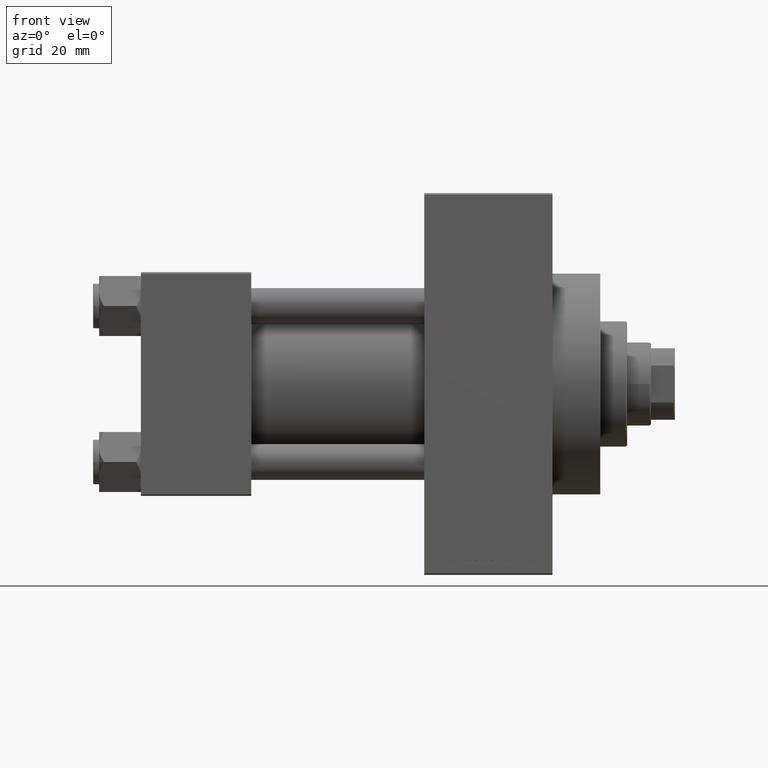
[diagram: clean part render]
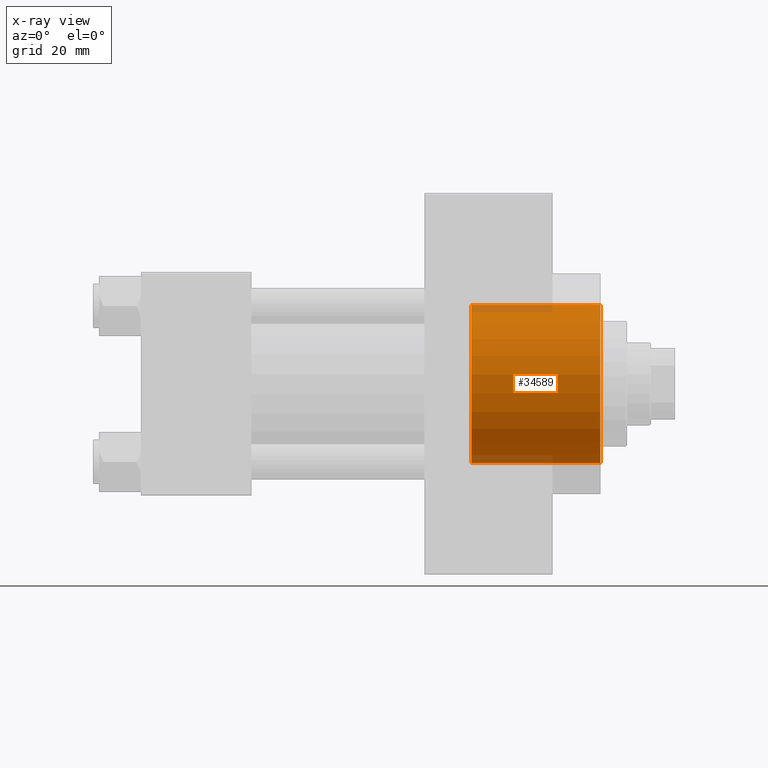
[diagram: x-ray — body ghosted, one internal face saturated and labeled with its STEP entity id]
A machine part, front view, then the same camera in x-ray: the body is ghosted and one INTERNAL B-rep face — a face not visible from any outside direction — is saturated and labeled: STEP entity #34589.
In plain terms, the highlighted cylindrical surface (partial cylindrical patch) has radius 26.5 mm, axis along (1, 0, 0).
Its self-contained STEP definition (entity closure, byte-faithful):
#594 = CYLINDRICAL_SURFACE ( 'NONE', #33798, 26.50000000000000355 ) ;
#2726 = CIRCLE ( 'NONE', #21805, 26.50000000000000355 ) ;
#5351 = ORIENTED_EDGE ( 'NONE', *, *, #31141, .F. ) ;
#6712 = CARTESIAN_POINT ( 'NONE',  ( 110.7400000000000375, 3.245314017740486554E-15, 26.50000000000000355 ) ) ;
#7849 = VECTOR ( 'NONE', #21296, 1000.000000000000000 ) ;
#10410 = VERTEX_POINT ( 'NONE', #12900 ) ;
#11343 = FACE_OUTER_BOUND ( 'NONE', #39605, .T. ) ;
#12900 = CARTESIAN_POINT ( 'NONE',  ( 110.7400000000000375, 3.245314017740486554E-15, 26.50000000000000355 ) ) ;
#13632 = VERTEX_POINT ( 'NONE', #41181 ) ;
#13757 = LINE ( 'NONE', #33550, #29881 ) ;
#14531 = VERTEX_POINT ( 'NONE', #18777 ) ;
#14822 = AXIS2_PLACEMENT_3D ( 'NONE', #26353, #40905, #15616 ) ;
#15616 = DIRECTION ( 'NONE',  ( 0.000000000000000000, 0.000000000000000000, -1.000000000000000000 ) ) ;
#18777 = CARTESIAN_POINT ( 'NONE',  ( 110.7400000000000375, 0.000000000000000000, -26.50000000000000355 ) ) ;
#19171 = VERTEX_POINT ( 'NONE', #26485 ) ;
#21296 = DIRECTION ( 'NONE',  ( 1.000000000000000000, -0.000000000000000000, -0.000000000000000000 ) ) ;
#21805 = AXIS2_PLACEMENT_3D ( 'NONE', #22831, #30228, #36911 ) ;
#22831 = CARTESIAN_POINT ( 'NONE',  ( 154.0000000000000284, 0.000000000000000000, 0.000000000000000000 ) ) ;
#25092 = LINE ( 'NONE', #6712, #7849 ) ;
#26353 = CARTESIAN_POINT ( 'NONE',  ( 110.7400000000000375, 0.000000000000000000, 0.000000000000000000 ) ) ;
#26485 = CARTESIAN_POINT ( 'NONE',  ( 154.0000000000000284, 3.245314017740486554E-15, 26.50000000000000355 ) ) ;
#28714 = ORIENTED_EDGE ( 'NONE', *, *, #35134, .T. ) ;
#29720 = CARTESIAN_POINT ( 'NONE',  ( 110.7400000000000375, 0.000000000000000000, 0.000000000000000000 ) ) ;
#29881 = VECTOR ( 'NONE', #40473, 1000.000000000000000 ) ;
#30228 = DIRECTION ( 'NONE',  ( 1.000000000000000000, 0.000000000000000000, 0.000000000000000000 ) ) ;
#30853 = CIRCLE ( 'NONE', #14822, 26.50000000000000355 ) ;
#31141 = EDGE_CURVE ( 'NONE', #14531, #13632, #13757, .T. ) ;
#31746 = DIRECTION ( 'NONE',  ( 0.000000000000000000, 0.000000000000000000, -1.000000000000000000 ) ) ;
#33550 = CARTESIAN_POINT ( 'NONE',  ( 110.7400000000000375, 0.000000000000000000, -26.50000000000000355 ) ) ;
#33798 = AXIS2_PLACEMENT_3D ( 'NONE', #29720, #44279, #31746 ) ;
#34589 = ADVANCED_FACE ( 'NONE', ( #11343 ), #594, .F. ) ;
#35134 = EDGE_CURVE ( 'NONE', #10410, #19171, #25092, .T. ) ;
#36911 = DIRECTION ( 'NONE',  ( 0.000000000000000000, 0.000000000000000000, -1.000000000000000000 ) ) ;
#37475 = EDGE_CURVE ( 'NONE', #10410, #14531, #30853, .T. ) ;
#39585 = ORIENTED_EDGE ( 'NONE', *, *, #44510, .T. ) ;
#39605 = EDGE_LOOP ( 'NONE', ( #44800, #28714, #39585, #5351 ) ) ;
#40473 = DIRECTION ( 'NONE',  ( 1.000000000000000000, -0.000000000000000000, -0.000000000000000000 ) ) ;
#40905 = DIRECTION ( 'NONE',  ( 1.000000000000000000, 0.000000000000000000, 0.000000000000000000 ) ) ;
#41181 = CARTESIAN_POINT ( 'NONE',  ( 154.0000000000000284, 0.000000000000000000, -26.50000000000000355 ) ) ;
#44279 = DIRECTION ( 'NONE',  ( 1.000000000000000000, -0.000000000000000000, -0.000000000000000000 ) ) ;
#44510 = EDGE_CURVE ( 'NONE', #19171, #13632, #2726, .T. ) ;
#44800 = ORIENTED_EDGE ( 'NONE', *, *, #37475, .F. ) ;